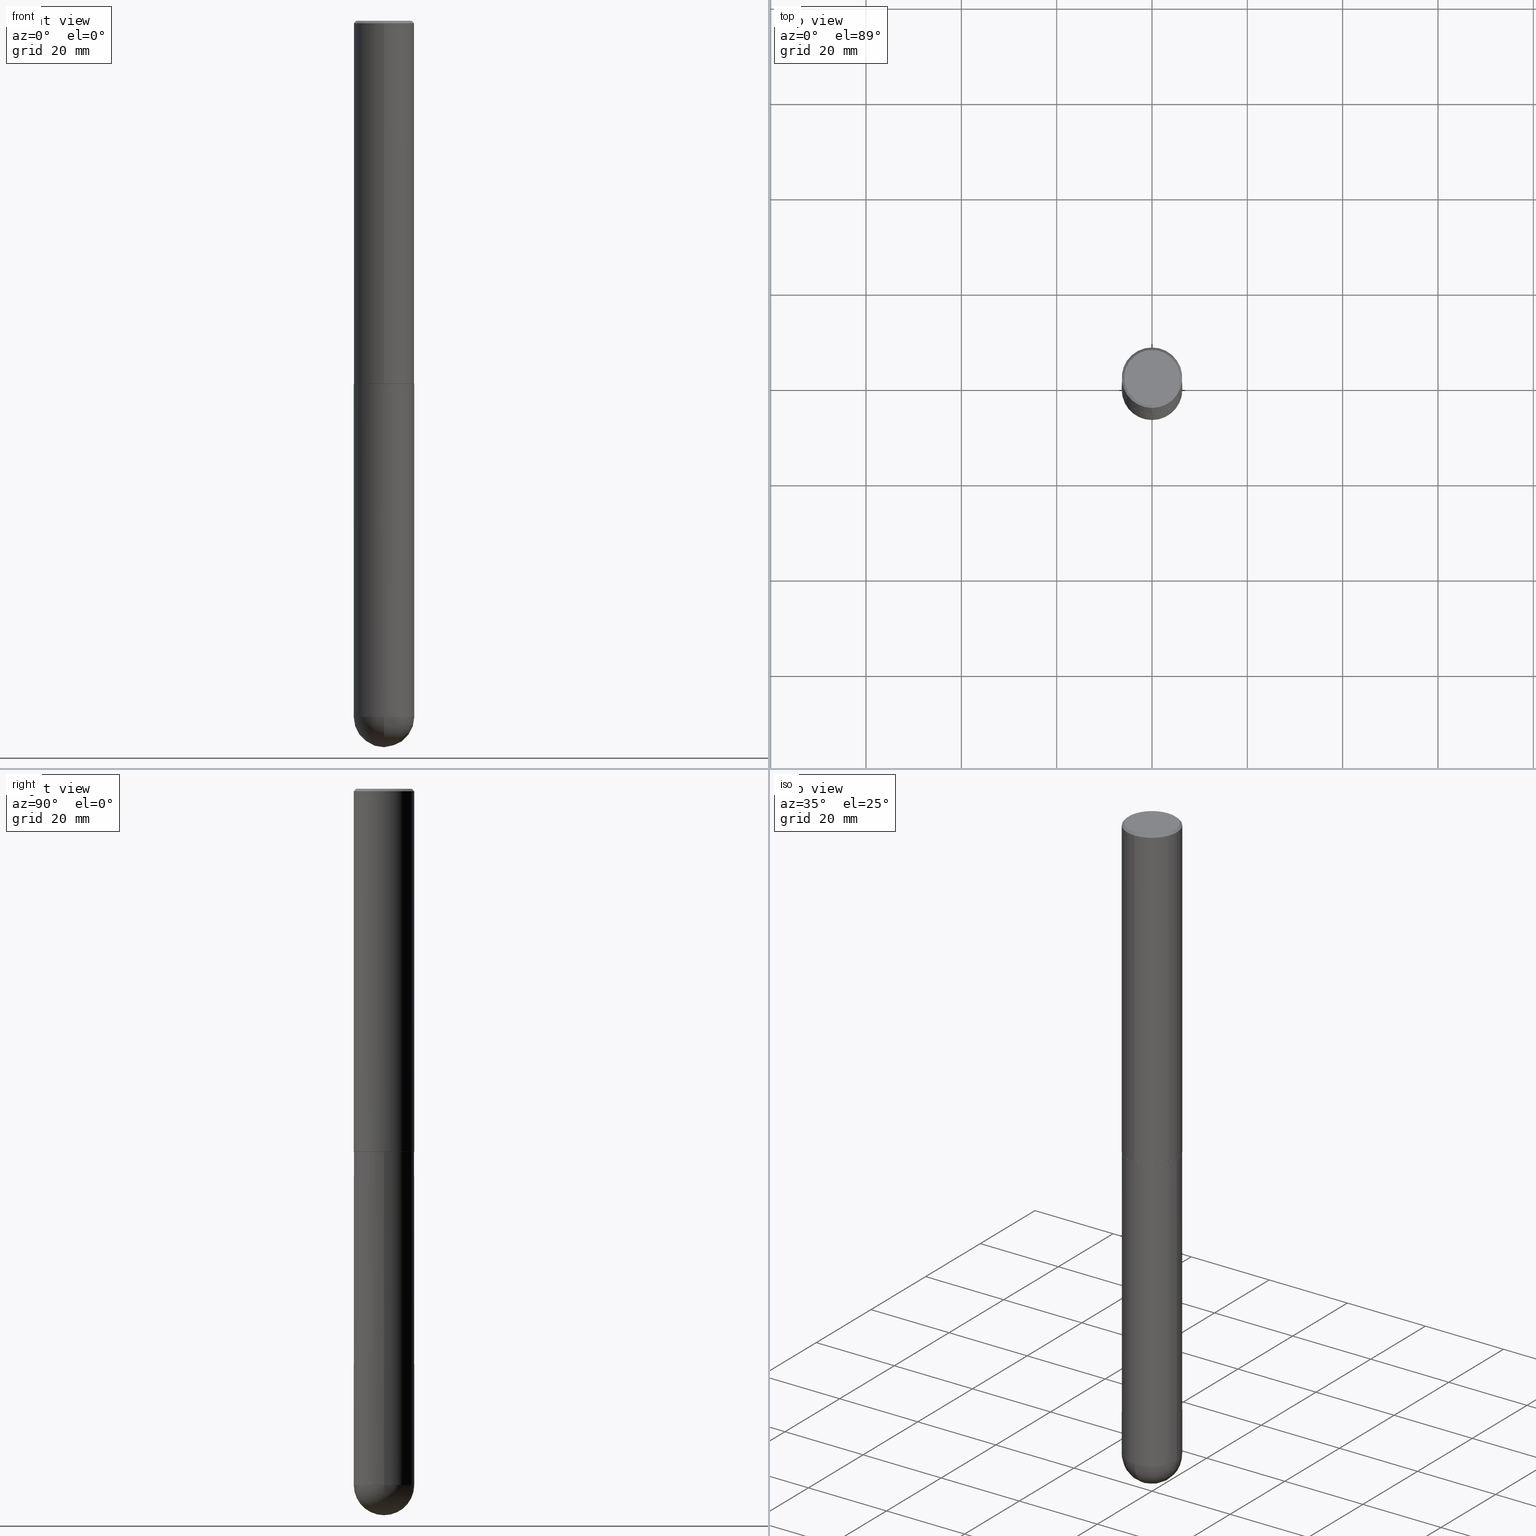
[diagram: canonical four-view strip — front | top / right | iso, engineering-drawing reading convention]
A machine part, canonical four-view strip (front | top / right | iso — engineering-drawing reading convention). The complete STEP part file that produces these views, byte-faithful:
ISO-10303-21;
HEADER;
FILE_DESCRIPTION (( 'STEP AP203' ),
    '1' );
FILE_NAME ('31912.STEP',
    '2024-02-21T17:11:07',
    ( '' ),
    ( '' ),
    'SwSTEP 2.0',
    'SolidWorks 2023',
    '' );
FILE_SCHEMA (( 'CONFIG_CONTROL_DESIGN' ));
ENDSEC;

DATA;
#1 = PERSON_AND_ORGANIZATION ( #246, #338 ) ;
#2 = DIRECTION ( 'NONE',  ( 1.000000000000000000, -6.982962677686262766E-15, 0.000000000000000000 ) ) ;
#3 = ORIENTED_EDGE ( 'NONE', *, *, #19, .T. ) ;
#4 = APPLICATION_CONTEXT ( 'configuration controlled 3d designs of mechanical parts and assemblies' ) ;
#5 = ORIENTED_EDGE ( 'NONE', *, *, #31, .F. ) ;
#6 = CARTESIAN_POINT ( 'NONE',  ( -1.738757706743806905E-15, -0.2490000000000104907, -2.999999999999999112 ) ) ;
#7 = ORIENTED_EDGE ( 'NONE', *, *, #122, .F. ) ;
#8 = AXIS2_PLACEMENT_3D ( 'NONE', #235, #44, #301 ) ;
#9 = VERTEX_POINT ( 'NONE', #234 ) ;
#10 = DIRECTION ( 'NONE',  ( -2.445032266171691881E-29, 3.492106488988713156E-15, 1.000000000000000000 ) ) ;
#11 = DIRECTION ( 'NONE',  ( -2.445032266171691881E-29, 3.492106488988713156E-15, 1.000000000000000000 ) ) ;
#12 = CC_DESIGN_PERSON_AND_ORGANIZATION_ASSIGNMENT ( #400, #121, ( #79 ) ) ;
#13 = DIRECTION ( 'NONE',  ( -6.982962677686265133E-15, -1.000000000000000000, 4.388510833195603583E-15 ) ) ;
#14 = ORIENTED_EDGE ( 'NONE', *, *, #390, .F. ) ;
#15 = DIRECTION ( 'NONE',  ( -2.445032266171692161E-29, 3.492106488988713156E-15, 1.000000000000000000 ) ) ;
#16 = DIRECTION ( 'NONE',  ( 1.000000000000000000, -6.982962677686266711E-15, 4.876176775795935793E-29 ) ) ;
#17 = CARTESIAN_POINT ( 'NONE',  ( 0.000000000000000000, 0.000000000000000000, 0.000000000000000000 ) ) ;
#18 = CIRCLE ( 'NONE', #86, 0.2500000000000006661 ) ;
#19 = EDGE_CURVE ( 'NONE', #282, #319, #176, .T. ) ;
#20 = FACE_OUTER_BOUND ( 'NONE', #100, .T. ) ;
#21 = ORIENTED_EDGE ( 'NONE', *, *, #401, .T. ) ;
#22 = COORDINATED_UNIVERSAL_TIME_OFFSET ( 5, 0, .BEHIND. ) ;
#23 = CARTESIAN_POINT ( 'NONE',  ( 3.047150466097158417E-44, -4.352079137280249131E-30, -1.246261862575839629E-15 ) ) ;
#24 = CIRCLE ( 'NONE', #326, 0.2500000000000000000 ) ;
#25 = CALENDAR_DATE ( 2024, 21, 2 ) ;
#26 = EDGE_CURVE ( 'NONE', #344, #312, #53, .T. ) ;
#27 = ORIENTED_EDGE ( 'NONE', *, *, #31, .T. ) ;
#28 = ORIENTED_EDGE ( 'NONE', *, *, #122, .T. ) ;
#29 = CIRCLE ( 'NONE', #168, 0.2500000000000006661 ) ;
#30 = COORDINATED_UNIVERSAL_TIME_OFFSET ( 5, 0, .BEHIND. ) ;
#31 = EDGE_CURVE ( 'NONE', #319, #9, #281, .T. ) ;
#32 = LINE ( 'NONE', #95, #240 ) ;
#33 = DIRECTION ( 'NONE',  ( -2.445032266171691881E-29, 3.492106488988713156E-15, 1.000000000000000000 ) ) ;
#34 = ORIENTED_EDGE ( 'NONE', *, *, #366, .F. ) ;
#35 = COORDINATED_UNIVERSAL_TIME_OFFSET ( 5, 0, .BEHIND. ) ;
#36 = CIRCLE ( 'NONE', #199, 0.2489999999999999991 ) ;
#37 =( GEOMETRIC_REPRESENTATION_CONTEXT ( 3 ) GLOBAL_UNCERTAINTY_ASSIGNED_CONTEXT ( ( #206 ) ) GLOBAL_UNIT_ASSIGNED_CONTEXT ( ( #227, #258, #134 ) ) REPRESENTATION_CONTEXT ( 'NONE', 'WORKASPACE' ) );
#38 = DIRECTION ( 'NONE',  ( -6.982962677686265922E-15, -1.000000000000000000, 4.370956789862815627E-15 ) ) ;
#39 = ORIENTED_EDGE ( 'NONE', *, *, #160, .F. ) ;
#40 = DIRECTION ( 'NONE',  ( -2.445468806185136597E-29, 3.491481338843145583E-15, 1.000000000000000000 ) ) ;
#41 = AXIS2_PLACEMENT_3D ( 'NONE', #357, #10, #239 ) ;
#42 = DIRECTION ( 'NONE',  ( 1.000000000000000000, -6.982962677686265922E-15, 4.883557194083112340E-29 ) ) ;
#43 = VECTOR ( 'NONE', #380, 39.37007874015748143 ) ;
#44 = DIRECTION ( 'NONE',  ( -1.000000000000000000, 6.982962677686265922E-15, -4.883557194083112340E-29 ) ) ;
#45 = CARTESIAN_POINT ( 'NONE',  ( 7.335096798515077043E-29, -1.047631946696613868E-14, -3.000000000000000444 ) ) ;
#46 = DIRECTION ( 'NONE',  ( 6.982962677686265922E-15, 1.000000000000000000, -3.500180241882337261E-15 ) ) ;
#47 = CARTESIAN_POINT ( 'NONE',  ( 7.332651766248905611E-29, -1.047282736047715268E-14, -2.999000000000000554 ) ) ;
#48 = LINE ( 'NONE', #72, #104 ) ;
#49 = CIRCLE ( 'NONE', #93, 0.2500000000000003331 ) ;
#50 = PERSON_AND_ORGANIZATION ( #246, #338 ) ;
#51 = DIRECTION ( 'NONE',  ( 1.000000000000000000, -6.982962677686266711E-15, 4.876176775795935793E-29 ) ) ;
#52 = ORIENTED_EDGE ( 'NONE', *, *, #194, .F. ) ;
#53 = CIRCLE ( 'NONE', #210, 0.2500000000000000000 ) ;
#54 = EDGE_CURVE ( 'NONE', #195, #268, #305, .T. ) ;
#55 = ORIENTED_EDGE ( 'NONE', *, *, #279, .F. ) ;
#56 = CARTESIAN_POINT ( 'NONE',  ( -1.745740669421567664E-15, -0.2500000000000001665, 8.730266222471788808E-16 ) ) ;
#57 = LINE ( 'NONE', #310, #43 ) ;
#58 = CARTESIAN_POINT ( 'NONE',  ( 4.890064532343397284E-31, -6.984212977977444358E-17, -0.02000000000000005593 ) ) ;
#59 = ORIENTED_EDGE ( 'NONE', *, *, #75, .F. ) ;
#60 = CARTESIAN_POINT ( 'NONE',  ( 1.769251412042722426E-15, 0.2489999999999895075, -3.000000000000001332 ) ) ;
#61 = ORIENTED_EDGE ( 'NONE', *, *, #318, .F. ) ;
#62 = APPROVAL_DATE_TIME ( #289, #138 ) ;
#63 = CC_DESIGN_PERSON_AND_ORGANIZATION_ASSIGNMENT ( #1, #320, ( #355 ) ) ;
#64 = AXIS2_PLACEMENT_3D ( 'NONE', #283, #92, #87 ) ;
#65 = ORIENTED_EDGE ( 'NONE', *, *, #220, .F. ) ;
#66 = PERSON_AND_ORGANIZATION ( #246, #338 ) ;
#67 = APPROVAL_ROLE ( '' ) ;
#68 = PERSON_AND_ORGANIZATION ( #246, #338 ) ;
#69 = SPHERICAL_SURFACE ( 'NONE', #249, 0.2500000000000006661 ) ;
#70 = APPROVAL ( #101, 'UNSPECIFIED' ) ;
#71 = DIRECTION ( 'NONE',  ( -6.982962677686265922E-15, -1.000000000000000000, 3.500180241882337261E-15 ) ) ;
#72 = CARTESIAN_POINT ( 'NONE',  ( 1.745740669421566875E-15, 0.2499999999999999167, -0.02000000000000093023 ) ) ;
#73 = SPHERICAL_SURFACE ( 'NONE', #8, 0.2500000000000006661 ) ;
#74 = ORIENTED_EDGE ( 'NONE', *, *, #313, .T. ) ;
#75 = EDGE_CURVE ( 'NONE', #180, #265, #113, .T. ) ;
#76 = DIRECTION ( 'NONE',  ( -2.445032266171691881E-29, 3.492106488988713156E-15, 1.000000000000000000 ) ) ;
#77 = AXIS2_PLACEMENT_3D ( 'NONE', #213, #165, #16 ) ;
#78 = CARTESIAN_POINT ( 'NONE',  ( 1.606081415867849745E-15, 0.2300000000000012312, -1.426315423755327875E-15 ) ) ;
#79 = PRODUCT_DEFINITION ( 'UNKNOWN', '', #355, #384 ) ;
#80 = DIRECTION ( 'NONE',  ( -2.445468806185136597E-29, 3.491481338843145583E-15, 1.000000000000000000 ) ) ;
#81 = AXIS2_PLACEMENT_3D ( 'NONE', #167, #373, #221 ) ;
#82 = CC_DESIGN_SECURITY_CLASSIFICATION ( #96, ( #355 ) ) ;
#83 = PRODUCT_RELATED_PRODUCT_CATEGORY ( 'detail', '', ( #132 ) ) ;
#84 = ORIENTED_EDGE ( 'NONE', *, *, #148, .F. ) ;
#85 = CARTESIAN_POINT ( 'NONE',  ( -1.646519519465171306E-15, -0.2300000000000012312, -4.430773701084313213E-16 ) ) ;
#86 = AXIS2_PLACEMENT_3D ( 'NONE', #233, #170, #112 ) ;
#87 = DIRECTION ( 'NONE',  ( 1.000000000000000000, -6.982962677686262766E-15, 0.000000000000000000 ) ) ;
#88 = ORIENTED_EDGE ( 'NONE', *, *, #366, .T. ) ;
#89 = APPROVAL ( #307, 'UNSPECIFIED' ) ;
#90 = ORIENTED_EDGE ( 'NONE', *, *, #178, .T. ) ;
#91 = DIRECTION ( 'NONE',  ( -2.445032266171691881E-29, 3.492106488988713156E-15, 1.000000000000000000 ) ) ;
#92 = DIRECTION ( 'NONE',  ( -2.445468806185136597E-29, 3.491481338843145583E-15, 1.000000000000000000 ) ) ;
#93 = AXIS2_PLACEMENT_3D ( 'NONE', #203, #322, #38 ) ;
#94 = PERSON_AND_ORGANIZATION_ROLE ( 'design_supplier' ) ;
#95 = CARTESIAN_POINT ( 'NONE',  ( 1.776356839400251254E-15, 0.2500000000000001665, -8.730266222471788808E-16 ) ) ;
#96 = SECURITY_CLASSIFICATION ( '', '', #347 ) ;
#97 = LENGTH_MEASURE_WITH_UNIT ( LENGTH_MEASURE( 0.02539999999999999897 ), #376 );
#98 = CARTESIAN_POINT ( 'NONE',  ( 1.675911042644708310E-15, 0.2300000000000012312, -2.049446355043247788E-15 ) ) ;
#99 = DIRECTION ( 'NONE',  ( -6.982962677686265922E-15, -1.000000000000000000, 3.492106488988713156E-15 ) ) ;
#100 = EDGE_LOOP ( 'NONE', ( #218, #155, #367, #34 ) ) ;
#101 = APPROVAL_STATUS ( 'not_yet_approved' ) ;
#102 = VERTEX_POINT ( 'NONE', #159 ) ;
#103 = ADVANCED_FACE ( 'NONE', ( #381 ), #251, .F. ) ;
#104 = VECTOR ( 'NONE', #200, 39.37007874015748143 ) ;
#105 = CIRCLE ( 'NONE', #288, 0.2500000000000003331 ) ;
#106 = FACE_OUTER_BOUND ( 'NONE', #179, .T. ) ;
#107 = DIRECTION ( 'NONE',  ( -2.445468806185136597E-29, 3.491481338843145583E-15, 1.000000000000000000 ) ) ;
#108 = CC_DESIGN_PERSON_AND_ORGANIZATION_ASSIGNMENT ( #66, #351, ( #96 ) ) ;
#109 = VERTEX_POINT ( 'NONE', #409 ) ;
#110 = CARTESIAN_POINT ( 'NONE',  ( 0.2500000000000000000, -1.745740669421566678E-15, 1.219044193948983948E-29 ) ) ;
#111 = FACE_OUTER_BOUND ( 'NONE', #325, .T. ) ;
#112 = DIRECTION ( 'NONE',  ( -7.105427357601001859E-15, -1.000000000000000000, 0.000000000000000000 ) ) ;
#113 = CIRCLE ( 'NONE', #209, 0.2300000000000012312 ) ;
#114 = VECTOR ( 'NONE', #15, 39.37007874015748143 ) ;
#115 = CARTESIAN_POINT ( 'NONE',  ( 7.335096798515077043E-29, -1.047631946696613868E-14, -3.000000000000000444 ) ) ;
#116 = DIRECTION ( 'NONE',  ( 2.445032266171691881E-29, -3.492106488988713156E-15, -1.000000000000000000 ) ) ;
#117 = AXIS2_PLACEMENT_3D ( 'NONE', #23, #345, #348 ) ;
#118 = DIRECTION ( 'NONE',  ( 0.000000000000000000, 0.000000000000000000, 1.000000000000000000 ) ) ;
#119 = ADVANCED_FACE ( 'NONE', ( #256 ), #385, .F. ) ;
#120 = EDGE_LOOP ( 'NONE', ( #14, #140, #292, #191 ) ) ;
#121 = PERSON_AND_ORGANIZATION_ROLE ( 'creator' ) ;
#122 = EDGE_CURVE ( 'NONE', #265, #102, #48, .T. ) ;
#123 = CONICAL_SURFACE ( 'NONE', #354, 0.2500000000000000000, 0.7853981633974471688 ) ;
#124 = COORDINATED_UNIVERSAL_TIME_OFFSET ( 5, 0, .BEHIND. ) ;
#125 = DIRECTION ( 'NONE',  ( 6.982962677686265922E-15, 1.000000000000000000, -3.500180241882337261E-15 ) ) ;
#126 = ORIENTED_EDGE ( 'NONE', *, *, #401, .F. ) ;
#127 = APPROVAL_DATE_TIME ( #192, #70 ) ;
#128 = CLOSED_SHELL ( 'NONE', ( #308, #224, #242, #119, #369 ) ) ;
#129 = APPROVAL_STATUS ( 'not_yet_approved' ) ;
#130 = DIRECTION ( 'NONE',  ( -2.445032266171692161E-29, 3.492106488988713156E-15, 1.000000000000000000 ) ) ;
#131 = EDGE_CURVE ( 'NONE', #268, #109, #332, .T. ) ;
#132 = PRODUCT ( '31912', '31912', '', ( #370 ) ) ;
#133 = SHAPE_DEFINITION_REPRESENTATION ( #197, #335 ) ;
#134 =( NAMED_UNIT ( * ) SI_UNIT ( $, .STERADIAN. ) SOLID_ANGLE_UNIT ( ) );
#135 = ORIENTED_EDGE ( 'NONE', *, *, #279, .T. ) ;
#136 = CARTESIAN_POINT ( 'NONE',  ( 0.000000000000000000, 0.000000000000000000, 0.000000000000000000 ) ) ;
#137 = CARTESIAN_POINT ( 'NONE',  ( 1.373032585765065255E-28, -2.055020006648814124E-14, -5.750000000000000888 ) ) ;
#138 = APPROVAL ( #129, 'UNSPECIFIED' ) ;
#139 = AXIS2_PLACEMENT_3D ( 'NONE', #391, #80, #207 ) ;
#140 = ORIENTED_EDGE ( 'NONE', *, *, #318, .T. ) ;
#141 = CYLINDRICAL_SURFACE ( 'NONE', #77, 0.2500000000000000000 ) ;
#142 = DIRECTION ( 'NONE',  ( -2.445032266171691881E-29, 3.492106488988713156E-15, 1.000000000000000000 ) ) ;
#143 = AXIS2_PLACEMENT_3D ( 'NONE', #78, #212, #329 ) ;
#144 = ADVANCED_FACE ( 'NONE', ( #323 ), #189, .T. ) ;
#145 = LOCAL_TIME ( 12, 11, 7.000000000000000000, #35 ) ;
#146 = DIRECTION ( 'NONE',  ( -2.445032266171691881E-29, 3.492106488988713156E-15, 1.000000000000000000 ) ) ;
#147 = CARTESIAN_POINT ( 'NONE',  ( 1.745740669421707884E-15, 0.2499999999999800160, -5.750000000000001776 ) ) ;
#148 = EDGE_CURVE ( 'NONE', #282, #399, #360, .T. ) ;
#149 = CARTESIAN_POINT ( 'NONE',  ( 1.435238263781167989E-28, -2.140776231620958900E-14, -6.000000000000001776 ) ) ;
#150 = LOCAL_TIME ( 12, 11, 7.000000000000000000, #124 ) ;
#151 = CARTESIAN_POINT ( 'NONE',  ( 1.745740669421639647E-15, 0.2499999999999895084, -3.000000000000000888 ) ) ;
#152 = ORIENTED_EDGE ( 'NONE', *, *, #270, .F. ) ;
#153 = DIRECTION ( 'NONE',  ( 1.000000000000000000, 0.000000000000000000, 0.000000000000000000 ) ) ;
#154 = AXIS2_PLACEMENT_3D ( 'NONE', #136, #261, #51 ) ;
#155 = ORIENTED_EDGE ( 'NONE', *, *, #164, .T. ) ;
#156 = DATE_TIME_ROLE ( 'creation_date' ) ;
#157 = DIRECTION ( 'NONE',  ( 5.024295867789434219E-15, 0.7071067811867430830, 0.7071067811863519514 ) ) ;
#158 = CARTESIAN_POINT ( 'NONE',  ( 1.406144563556453767E-28, -2.007601769834809252E-14, -5.750000000000000888 ) ) ;
#159 = CARTESIAN_POINT ( 'NONE',  ( 1.745740669421566875E-15, 0.2499999999999999167, -0.02000000000000093023 ) ) ;
#160 = EDGE_CURVE ( 'NONE', #319, #282, #36, .T. ) ;
#161 = CALENDAR_DATE ( 2024, 21, 2 ) ;
#162 = CYLINDRICAL_SURFACE ( 'NONE', #154, 0.2500000000000000000 ) ;
#163 = DIRECTION ( 'NONE',  ( 2.438088387897960049E-29, -3.491481338843145188E-15, -1.000000000000000000 ) ) ;
#164 = EDGE_CURVE ( 'NONE', #371, #268, #18, .T. ) ;
#165 = DIRECTION ( 'NONE',  ( -2.445468806185136597E-29, 3.491481338843145583E-15, 1.000000000000000000 ) ) ;
#166 = DIRECTION ( 'NONE',  ( -4.937700262165896205E-15, -0.7071067811867381980, 0.7071067811863568364 ) ) ;
#167 = CARTESIAN_POINT ( 'NONE',  ( 7.335096798515077043E-29, -1.047631946696613868E-14, -3.000000000000000444 ) ) ;
#168 = AXIS2_PLACEMENT_3D ( 'NONE', #137, #42, #328 ) ;
#169 = CYLINDRICAL_SURFACE ( 'NONE', #215, 0.2500000000000001665 ) ;
#170 = DIRECTION ( 'NONE',  ( -1.000000000000000000, 7.105427357601001070E-15, -4.926315508542082329E-29 ) ) ;
#171 = ORIENTED_EDGE ( 'NONE', *, *, #160, .T. ) ;
#172 = DIRECTION ( 'NONE',  ( -6.982962677686265922E-15, -1.000000000000000000, 4.370956789862815627E-15 ) ) ;
#173 = LINE ( 'NONE', #304, #314 ) ;
#174 = ADVANCED_FACE ( 'NONE', ( #364 ), #358, .F. ) ;
#175 = DIRECTION ( 'NONE',  ( -6.982962677686265922E-15, -1.000000000000000000, 3.492106488988713156E-15 ) ) ;
#176 = CIRCLE ( 'NONE', #81, 0.2489999999999999991 ) ;
#177 = LOCAL_TIME ( 12, 11, 7.000000000000000000, #30 ) ;
#178 = EDGE_CURVE ( 'NONE', #195, #312, #173, .T. ) ;
#179 = EDGE_LOOP ( 'NONE', ( #5, #171, #228, #61 ) ) ;
#180 = VERTEX_POINT ( 'NONE', #85 ) ;
#181 = APPLICATION_PROTOCOL_DEFINITION ( 'international standard', 'config_control_design', 1994, #4 ) ;
#182 = AXIS2_PLACEMENT_3D ( 'NONE', #311, #286, #99 ) ;
#183 = AXIS2_PLACEMENT_3D ( 'NONE', #17, #146, #262 ) ;
#184 = PERSON_AND_ORGANIZATION_ROLE ( 'design_owner' ) ;
#185 = EDGE_LOOP ( 'NONE', ( #271, #217 ) ) ;
#186 = EDGE_LOOP ( 'NONE', ( #59, #21, #336, #7 ) ) ;
#187 = DATE_AND_TIME ( #226, #177 ) ;
#188 = DIRECTION ( 'NONE',  ( -1.000000000000000000, 6.982962677686265922E-15, -4.883557194083112340E-29 ) ) ;
#189 = CONICAL_SURFACE ( 'NONE', #219, 0.2489999999999999991, 0.7853981633977213939 ) ;
#190 = AXIS2_PLACEMENT_3D ( 'NONE', #202, #302, #13 ) ;
#191 = ORIENTED_EDGE ( 'NONE', *, *, #237, .F. ) ;
#192 = DATE_AND_TIME ( #161, #150 ) ;
#193 = ORIENTED_EDGE ( 'NONE', *, *, #54, .T. ) ;
#194 = EDGE_CURVE ( 'NONE', #109, #397, #24, .T. ) ;
#195 = VERTEX_POINT ( 'NONE', #408 ) ;
#196 = PERSON_AND_ORGANIZATION ( #246, #338 ) ;
#197 = PRODUCT_DEFINITION_SHAPE ( 'NONE', 'NONE',  #79 ) ;
#198 = ORIENTED_EDGE ( 'NONE', *, *, #290, .F. ) ;
#199 = AXIS2_PLACEMENT_3D ( 'NONE', #45, #11, #297 ) ;
#200 = DIRECTION ( 'NONE',  ( 4.937700262164541731E-15, 0.7071067811865442421, -0.7071067811865507924 ) ) ;
#201 = CALENDAR_DATE ( 2024, 21, 2 ) ;
#202 = CARTESIAN_POINT ( 'NONE',  ( 7.335096798515077043E-29, -1.047631946696613868E-14, -3.000000000000000444 ) ) ;
#203 = CARTESIAN_POINT ( 'NONE',  ( 7.332651766248905611E-29, -1.047282736047715268E-14, -2.999000000000000554 ) ) ;
#204 = DIRECTION ( 'NONE',  ( 1.000000000000000000, -6.982962677686262766E-15, 0.000000000000000000 ) ) ;
#205 = FACE_OUTER_BOUND ( 'NONE', #298, .T. ) ;
#206 = UNCERTAINTY_MEASURE_WITH_UNIT (LENGTH_MEASURE( 1.000000000000000082E-05 ), #227, 'distance_accuracy_value', 'NONE');
#207 = DIRECTION ( 'NONE',  ( 1.000000000000000000, -6.982962677686262766E-15, 0.000000000000000000 ) ) ;
#208 = DIRECTION ( 'NONE',  ( -6.982962677686265133E-15, -1.000000000000000000, 4.388510833195603583E-15 ) ) ;
#209 = AXIS2_PLACEMENT_3D ( 'NONE', #406, #33, #340 ) ;
#210 = AXIS2_PLACEMENT_3D ( 'NONE', #346, #378, #248 ) ;
#211 = CARTESIAN_POINT ( 'NONE',  ( -0.2500000000000000000, -1.349887401803851318E-14, -3.000000000000000444 ) ) ;
#212 = DIRECTION ( 'NONE',  ( 2.445032266171691320E-29, -3.492106488988713156E-15, -1.000000000000000000 ) ) ;
#213 = CARTESIAN_POINT ( 'NONE',  ( 0.000000000000000000, 0.000000000000000000, 0.000000000000000000 ) ) ;
#214 = ADVANCED_FACE ( 'NONE', ( #253 ), #276, .T. ) ;
#215 = AXIS2_PLACEMENT_3D ( 'NONE', #388, #76, #175 ) ;
#216 = APPROVAL_PERSON_ORGANIZATION ( #405, #138, #67 ) ;
#217 = ORIENTED_EDGE ( 'NONE', *, *, #75, .T. ) ;
#218 = ORIENTED_EDGE ( 'NONE', *, *, #313, .F. ) ;
#219 = AXIS2_PLACEMENT_3D ( 'NONE', #115, #142, #208 ) ;
#220 = EDGE_CURVE ( 'NONE', #109, #344, #291, .T. ) ;
#221 = DIRECTION ( 'NONE',  ( -6.982962677686265133E-15, -1.000000000000000000, 4.388510833195603583E-15 ) ) ;
#222 = ORIENTED_EDGE ( 'NONE', *, *, #383, .F. ) ;
#223 = DATE_AND_TIME ( #379, #145 ) ;
#224 = ADVANCED_FACE ( 'NONE', ( #20 ), #73, .T. ) ;
#225 = CC_DESIGN_APPROVAL ( #138, ( #355 ) ) ;
#226 = CALENDAR_DATE ( 2024, 21, 2 ) ;
#227 =( CONVERSION_BASED_UNIT ( 'INCH', #97 ) LENGTH_UNIT ( ) NAMED_UNIT ( #374 ) );
#228 = ORIENTED_EDGE ( 'NONE', *, *, #148, .T. ) ;
#229 = CARTESIAN_POINT ( 'NONE',  ( -1.776356839400113597E-15, -0.2500000000000206501, -5.750000000000000000 ) ) ;
#230 = AXIS2_PLACEMENT_3D ( 'NONE', #377, #91, #71 ) ;
#231 = DIRECTION ( 'NONE',  ( -2.445468806185136877E-29, 3.491481338843145188E-15, 1.000000000000000000 ) ) ;
#232 = CIRCLE ( 'NONE', #333, 0.2500000000000000000 ) ;
#233 = CARTESIAN_POINT ( 'NONE',  ( 1.373032585765065255E-28, -2.055020006648814124E-14, -5.750000000000000888 ) ) ;
#234 = CARTESIAN_POINT ( 'NONE',  ( 1.776356839400289119E-15, 0.2499999999999898415, -2.999000000000001442 ) ) ;
#235 = CARTESIAN_POINT ( 'NONE',  ( 1.373032585765065255E-28, -2.055020006648814124E-14, -5.750000000000000888 ) ) ;
#236 = DIRECTION ( 'NONE',  ( -1.000000000000000000, 6.982962677686265922E-15, -4.876176775795935793E-29 ) ) ;
#237 = EDGE_CURVE ( 'NONE', #102, #315, #372, .T. ) ;
#238 = CARTESIAN_POINT ( 'NONE',  ( -1.738757706743806905E-15, -0.2490000000000104907, -2.999999999999999112 ) ) ;
#239 = DIRECTION ( 'NONE',  ( -6.982962677686265922E-15, -1.000000000000000000, 3.500180241882337261E-15 ) ) ;
#240 = VECTOR ( 'NONE', #130, 39.37007874015748143 ) ;
#241 = CARTESIAN_POINT ( 'NONE',  ( 1.772804125721524114E-15, 0.2489999999999895075, -3.000000000000001332 ) ) ;
#242 = ADVANCED_FACE ( 'NONE', ( #362 ), #69, .T. ) ;
#243 = APPLICATION_PROTOCOL_DEFINITION ( 'international standard', 'config_control_design', 1994, #317 ) ;
#244 = CIRCLE ( 'NONE', #139, 0.2500000000000000000 ) ;
#245 = EDGE_LOOP ( 'NONE', ( #3, #27, #55, #84 ) ) ;
#246 = PERSON ( 'UNSPECIFIED', 'UNSPECIFIED', 'UNSPECIFIED', ('UNSPECIFIED'), ('UNSPECIFIED'), ('UNSPECIFIED') ) ;
#247 = ADVANCED_FACE ( 'NONE', ( #294 ), #123, .T. ) ;
#248 = DIRECTION ( 'NONE',  ( 1.000000000000000000, -6.982962677686262766E-15, 0.000000000000000000 ) ) ;
#249 = AXIS2_PLACEMENT_3D ( 'NONE', #255, #188, #259 ) ;
#250 = CC_DESIGN_PERSON_AND_ORGANIZATION_ASSIGNMENT ( #68, #94, ( #355 ) ) ;
#251 = PLANE ( 'NONE',  #182 ) ;
#252 = ORIENTED_EDGE ( 'NONE', *, *, #220, .T. ) ;
#253 = FACE_OUTER_BOUND ( 'NONE', #316, .T. ) ;
#254 = VECTOR ( 'NONE', #231, 39.37007874015748143 ) ;
#255 = CARTESIAN_POINT ( 'NONE',  ( 1.373032585765065255E-28, -2.055020006648814124E-14, -5.750000000000000888 ) ) ;
#256 = FACE_OUTER_BOUND ( 'NONE', #359, .T. ) ;
#257 = EDGE_LOOP ( 'NONE', ( #135, #334, #152, #394 ) ) ;
#258 =( NAMED_UNIT ( * ) PLANE_ANGLE_UNIT ( ) SI_UNIT ( $, .RADIAN. ) );
#259 = DIRECTION ( 'NONE',  ( 6.982962677686265922E-15, 1.000000000000000000, -4.370956789862809317E-15 ) ) ;
#260 = DIRECTION ( 'NONE',  ( 2.445032266171691881E-29, -3.492106488988713156E-15, -1.000000000000000000 ) ) ;
#261 = DIRECTION ( 'NONE',  ( -2.445468806185136597E-29, 3.491481338843145583E-15, 1.000000000000000000 ) ) ;
#262 = DIRECTION ( 'NONE',  ( -6.982962677686265922E-15, -1.000000000000000000, 3.492106488988713156E-15 ) ) ;
#263 = CIRCLE ( 'NONE', #230, 0.2500000000000000000 ) ;
#264 = ORIENTED_EDGE ( 'NONE', *, *, #178, .F. ) ;
#265 = VERTEX_POINT ( 'NONE', #98 ) ;
#266 = DIRECTION ( 'NONE',  ( -2.445468806185136877E-29, 3.491481338843145188E-15, 1.000000000000000000 ) ) ;
#267 = AXIS2_PLACEMENT_3D ( 'NONE', #58, #116, #46 ) ;
#268 = VERTEX_POINT ( 'NONE', #229 ) ;
#269 = FACE_OUTER_BOUND ( 'NONE', #257, .T. ) ;
#270 = EDGE_CURVE ( 'NONE', #315, #102, #263, .T. ) ;
#271 = ORIENTED_EDGE ( 'NONE', *, *, #383, .T. ) ;
#272 = APPROVAL_PERSON_ORGANIZATION ( #50, #89, #368 ) ;
#273 = ORIENTED_EDGE ( 'NONE', *, *, #26, .F. ) ;
#274 = DATE_AND_TIME ( #25, #306 ) ;
#275 = APPROVAL_DATE_TIME ( #274, #89 ) ;
#276 = CONICAL_SURFACE ( 'NONE', #267, 0.2500000000000000000, 0.7853981633974471688 ) ;
#277 = MANIFOLD_SOLID_BREP ( 'Body-Move/Copy2[2]', #411 ) ;
#278 = LOCAL_TIME ( 12, 11, 7.000000000000000000, #287 ) ;
#279 = EDGE_CURVE ( 'NONE', #399, #9, #49, .T. ) ;
#280 = MANIFOLD_SOLID_BREP ( 'Body-Move/Copy2[1]', #128 ) ;
#281 = LINE ( 'NONE', #60, #349 ) ;
#282 = VERTEX_POINT ( 'NONE', #238 ) ;
#283 = CARTESIAN_POINT ( 'NONE',  ( 1.406144563556453767E-28, -2.007601769834809252E-14, -5.750000000000000888 ) ) ;
#284 = APPROVAL_ROLE ( '' ) ;
#285 = DIRECTION ( 'NONE',  ( 1.000000000000000000, -6.982962677686262766E-15, 0.000000000000000000 ) ) ;
#286 = DIRECTION ( 'NONE',  ( -2.445032266171691320E-29, 3.492106488988713156E-15, 1.000000000000000000 ) ) ;
#287 = COORDINATED_UNIVERSAL_TIME_OFFSET ( 5, 0, .BEHIND. ) ;
#288 = AXIS2_PLACEMENT_3D ( 'NONE', #47, #303, #172 ) ;
#289 = DATE_AND_TIME ( #201, #278 ) ;
#290 = EDGE_CURVE ( 'NONE', #312, #344, #244, .T. ) ;
#291 = LINE ( 'NONE', #110, #254 ) ;
#292 = ORIENTED_EDGE ( 'NONE', *, *, #393, .T. ) ;
#293 = CARTESIAN_POINT ( 'NONE',  ( 4.890064532343397284E-31, -6.984212977977444358E-17, -0.02000000000000005593 ) ) ;
#294 = FACE_OUTER_BOUND ( 'NONE', #186, .T. ) ;
#295 = ORIENTED_EDGE ( 'NONE', *, *, #19, .F. ) ;
#296 = ORIENTED_EDGE ( 'NONE', *, *, #237, .T. ) ;
#297 = DIRECTION ( 'NONE',  ( -6.982962677686265133E-15, -1.000000000000000000, 4.388510833195603583E-15 ) ) ;
#298 = EDGE_LOOP ( 'NONE', ( #264, #193, #403, #252, #198 ) ) ;
#299 = ADVANCED_FACE ( 'NONE', ( #269 ), #169, .T. ) ;
#300 = CC_DESIGN_APPROVAL ( #89, ( #79 ) ) ;
#301 = DIRECTION ( 'NONE',  ( 6.982962677686265922E-15, 1.000000000000000000, -4.370956789862809317E-15 ) ) ;
#302 = DIRECTION ( 'NONE',  ( -2.445032266171691881E-29, 3.492106488988713156E-15, 1.000000000000000000 ) ) ;
#303 = DIRECTION ( 'NONE',  ( -2.445032266171691881E-29, 3.492106488988713156E-15, 1.000000000000000000 ) ) ;
#304 = CARTESIAN_POINT ( 'NONE',  ( -0.2500000000000000000, 1.776356839400250465E-15, -1.229733772563726445E-29 ) ) ;
#305 = CIRCLE ( 'NONE', #64, 0.2500000000000000000 ) ;
#306 = LOCAL_TIME ( 12, 11, 7.000000000000000000, #22 ) ;
#307 = APPROVAL_STATUS ( 'not_yet_approved' ) ;
#308 = ADVANCED_FACE ( 'NONE', ( #111 ), #141, .T. ) ;
#309 = ORIENTED_EDGE ( 'NONE', *, *, #131, .F. ) ;
#310 = CARTESIAN_POINT ( 'NONE',  ( -1.715124499442882299E-15, -0.2500000000000000555, -0.01999999999999918163 ) ) ;
#311 = CARTESIAN_POINT ( 'NONE',  ( 7.335096798515074801E-29, -1.047631946696613710E-14, -2.999999999999999556 ) ) ;
#312 = VERTEX_POINT ( 'NONE', #211 ) ;
#313 = EDGE_CURVE ( 'NONE', #371, #397, #29, .T. ) ;
#314 = VECTOR ( 'NONE', #266, 39.37007874015748143 ) ;
#315 = VERTEX_POINT ( 'NONE', #361 ) ;
#316 = EDGE_LOOP ( 'NONE', ( #126, #222, #28, #296 ) ) ;
#317 = APPLICATION_CONTEXT ( 'configuration controlled 3d designs of mechanical parts and assemblies' ) ;
#318 = EDGE_CURVE ( 'NONE', #9, #399, #105, .T. ) ;
#319 = VERTEX_POINT ( 'NONE', #241 ) ;
#320 = PERSON_AND_ORGANIZATION_ROLE ( 'creator' ) ;
#321 = CARTESIAN_POINT ( 'NONE',  ( 0.2500000000000000000, -1.222018468595100303E-14, -3.000000000000000444 ) ) ;
#322 = DIRECTION ( 'NONE',  ( -2.445032266171691881E-29, 3.492106488988713156E-15, 1.000000000000000000 ) ) ;
#323 = FACE_OUTER_BOUND ( 'NONE', #245, .T. ) ;
#324 = ADVANCED_FACE ( 'NONE', ( #386 ), #330, .T. ) ;
#325 = EDGE_LOOP ( 'NONE', ( #88, #90, #273, #65, #352 ) ) ;
#326 = AXIS2_PLACEMENT_3D ( 'NONE', #158, #339, #285 ) ;
#327 = CARTESIAN_POINT ( 'NONE',  ( 1.406144563556453767E-28, -2.007601769834809252E-14, -5.750000000000000888 ) ) ;
#328 = DIRECTION ( 'NONE',  ( 6.982962677686266711E-15, 1.000000000000000000, 0.000000000000000000 ) ) ;
#329 = DIRECTION ( 'NONE',  ( 6.982962677686265922E-15, 1.000000000000000000, -3.492106488988713156E-15 ) ) ;
#330 = CYLINDRICAL_SURFACE ( 'NONE', #183, 0.2500000000000001665 ) ;
#331 = CC_DESIGN_PERSON_AND_ORGANIZATION_ASSIGNMENT ( #398, #184, ( #132 ) ) ;
#332 = CIRCLE ( 'NONE', #402, 0.2500000000000000000 ) ;
#333 = AXIS2_PLACEMENT_3D ( 'NONE', #389, #40, #2 ) ;
#334 = ORIENTED_EDGE ( 'NONE', *, *, #390, .T. ) ;
#335 = ADVANCED_BREP_SHAPE_REPRESENTATION ( '31912', ( #280, #277, #350 ), #37 ) ;
#336 = ORIENTED_EDGE ( 'NONE', *, *, #270, .T. ) ;
#337 = LINE ( 'NONE', #56, #114 ) ;
#338 = ORGANIZATION ( 'UNSPECIFIED', 'UNSPECIFIED', '' ) ;
#339 = DIRECTION ( 'NONE',  ( -2.445468806185136597E-29, 3.491481338843145583E-15, 1.000000000000000000 ) ) ;
#340 = DIRECTION ( 'NONE',  ( -6.982962677686265922E-15, -1.000000000000000000, 3.492106488988712762E-15 ) ) ;
#341 = ADVANCED_FACE ( 'NONE', ( #106 ), #363, .T. ) ;
#342 = EDGE_LOOP ( 'NONE', ( #295, #39 ) ) ;
#343 = CARTESIAN_POINT ( 'NONE',  ( 0.000000000000000000, 0.000000000000000000, 0.000000000000000000 ) ) ;
#344 = VERTEX_POINT ( 'NONE', #321 ) ;
#345 = DIRECTION ( 'NONE',  ( -2.445032266171691881E-29, 3.492106488988713156E-15, 1.000000000000000000 ) ) ;
#346 = CARTESIAN_POINT ( 'NONE',  ( 7.336406418555409790E-29, -1.047444401652943635E-14, -3.000000000000000444 ) ) ;
#347 = SECURITY_CLASSIFICATION_LEVEL ( 'unclassified' ) ;
#348 = DIRECTION ( 'NONE',  ( -6.982962677686265922E-15, -1.000000000000000000, 3.492106488988712762E-15 ) ) ;
#349 = VECTOR ( 'NONE', #157, 39.37007874015748143 ) ;
#350 = AXIS2_PLACEMENT_3D ( 'NONE', #343, #118, #153 ) ;
#351 = PERSON_AND_ORGANIZATION_ROLE ( 'classification_officer' ) ;
#352 = ORIENTED_EDGE ( 'NONE', *, *, #194, .T. ) ;
#353 = EDGE_LOOP ( 'NONE', ( #365, #74, #52, #309 ) ) ;
#354 = AXIS2_PLACEMENT_3D ( 'NONE', #293, #260, #125 ) ;
#355 = PRODUCT_DEFINITION_FORMATION_WITH_SPECIFIED_SOURCE ( 'ANY', '', #132, .NOT_KNOWN. ) ;
#356 = CC_DESIGN_DATE_AND_TIME_ASSIGNMENT ( #223, #156, ( #79 ) ) ;
#357 = CARTESIAN_POINT ( 'NONE',  ( 4.890064532343397284E-31, -6.984212977977444358E-17, -0.02000000000000005593 ) ) ;
#358 = PLANE ( 'NONE',  #143 ) ;
#359 = EDGE_LOOP ( 'NONE', ( #410, #375 ) ) ;
#360 = LINE ( 'NONE', #6, #392 ) ;
#361 = CARTESIAN_POINT ( 'NONE',  ( -1.715124499442882299E-15, -0.2500000000000000555, -0.01999999999999918163 ) ) ;
#362 = FACE_OUTER_BOUND ( 'NONE', #353, .T. ) ;
#363 = CONICAL_SURFACE ( 'NONE', #190, 0.2489999999999999991, 0.7853981633977213939 ) ;
#364 = FACE_OUTER_BOUND ( 'NONE', #185, .T. ) ;
#365 = ORIENTED_EDGE ( 'NONE', *, *, #164, .F. ) ;
#366 = EDGE_CURVE ( 'NONE', #397, #195, #232, .T. ) ;
#367 = ORIENTED_EDGE ( 'NONE', *, *, #54, .F. ) ;
#368 = APPROVAL_ROLE ( '' ) ;
#369 = ADVANCED_FACE ( 'NONE', ( #205 ), #162, .T. ) ;
#370 = MECHANICAL_CONTEXT ( 'NONE', #317, 'mechanical' ) ;
#371 = VERTEX_POINT ( 'NONE', #149 ) ;
#372 = CIRCLE ( 'NONE', #41, 0.2500000000000000000 ) ;
#373 = DIRECTION ( 'NONE',  ( -2.445032266171691881E-29, 3.492106488988713156E-15, 1.000000000000000000 ) ) ;
#374 = DIMENSIONAL_EXPONENTS ( 1.000000000000000000, 0.000000000000000000, 0.000000000000000000, 0.000000000000000000, 0.000000000000000000, 0.000000000000000000, 0.000000000000000000 ) ;
#375 = ORIENTED_EDGE ( 'NONE', *, *, #290, .T. ) ;
#376 =( LENGTH_UNIT ( ) NAMED_UNIT ( * ) SI_UNIT ( $, .METRE. ) );
#377 = CARTESIAN_POINT ( 'NONE',  ( 4.890064532343397284E-31, -6.984212977977444358E-17, -0.02000000000000005593 ) ) ;
#378 = DIRECTION ( 'NONE',  ( -2.445468806185136597E-29, 3.491481338843145583E-15, 1.000000000000000000 ) ) ;
#379 = CALENDAR_DATE ( 2024, 21, 2 ) ;
#380 = DIRECTION ( 'NONE',  ( -4.851104656540957964E-15, -0.7071067811865491270, -0.7071067811865459074 ) ) ;
#381 = FACE_OUTER_BOUND ( 'NONE', #342, .T. ) ;
#382 = DATE_TIME_ROLE ( 'classification_date' ) ;
#383 = EDGE_CURVE ( 'NONE', #265, #180, #387, .T. ) ;
#384 = DESIGN_CONTEXT ( 'detailed design', #4, 'design' ) ;
#385 = PLANE ( 'NONE',  #396 ) ;
#386 = FACE_OUTER_BOUND ( 'NONE', #120, .T. ) ;
#387 = CIRCLE ( 'NONE', #117, 0.2300000000000012312 ) ;
#388 = CARTESIAN_POINT ( 'NONE',  ( 0.000000000000000000, 0.000000000000000000, 0.000000000000000000 ) ) ;
#389 = CARTESIAN_POINT ( 'NONE',  ( 1.406144563556453767E-28, -2.007601769834809252E-14, -5.750000000000000888 ) ) ;
#390 = EDGE_CURVE ( 'NONE', #9, #102, #32, .T. ) ;
#391 = CARTESIAN_POINT ( 'NONE',  ( 7.336406418555409790E-29, -1.047444401652943635E-14, -3.000000000000000444 ) ) ;
#392 = VECTOR ( 'NONE', #166, 39.37007874015748143 ) ;
#393 = EDGE_CURVE ( 'NONE', #399, #315, #337, .T. ) ;
#394 = ORIENTED_EDGE ( 'NONE', *, *, #393, .F. ) ;
#395 = CARTESIAN_POINT ( 'NONE',  ( -1.745740669421495680E-15, -0.2500000000000108247, -2.998999999999999222 ) ) ;
#396 = AXIS2_PLACEMENT_3D ( 'NONE', #151, #163, #236 ) ;
#397 = VERTEX_POINT ( 'NONE', #147 ) ;
#398 = PERSON_AND_ORGANIZATION ( #246, #338 ) ;
#399 = VERTEX_POINT ( 'NONE', #395 ) ;
#400 = PERSON_AND_ORGANIZATION ( #246, #338 ) ;
#401 = EDGE_CURVE ( 'NONE', #180, #315, #57, .T. ) ;
#402 = AXIS2_PLACEMENT_3D ( 'NONE', #327, #107, #204 ) ;
#403 = ORIENTED_EDGE ( 'NONE', *, *, #131, .T. ) ;
#404 = APPROVAL_PERSON_ORGANIZATION ( #196, #70, #284 ) ;
#405 = PERSON_AND_ORGANIZATION ( #246, #338 ) ;
#406 = CARTESIAN_POINT ( 'NONE',  ( 3.047150466097158417E-44, -4.352079137280249131E-30, -1.246261862575839629E-15 ) ) ;
#407 = CC_DESIGN_DATE_AND_TIME_ASSIGNMENT ( #187, #382, ( #96 ) ) ;
#408 = CARTESIAN_POINT ( 'NONE',  ( -0.2500000000000000000, -1.349887401803851318E-14, -5.750000000000000888 ) ) ;
#409 = CARTESIAN_POINT ( 'NONE',  ( 0.2500000000000000000, -1.702097152686033033E-14, -5.750000000000000888 ) ) ;
#410 = ORIENTED_EDGE ( 'NONE', *, *, #26, .T. ) ;
#411 = CLOSED_SHELL ( 'NONE', ( #144, #299, #247, #214, #324, #341, #103, #174 ) ) ;
#412 = CC_DESIGN_APPROVAL ( #70, ( #96 ) ) ;
ENDSEC;
END-ISO-10303-21;
